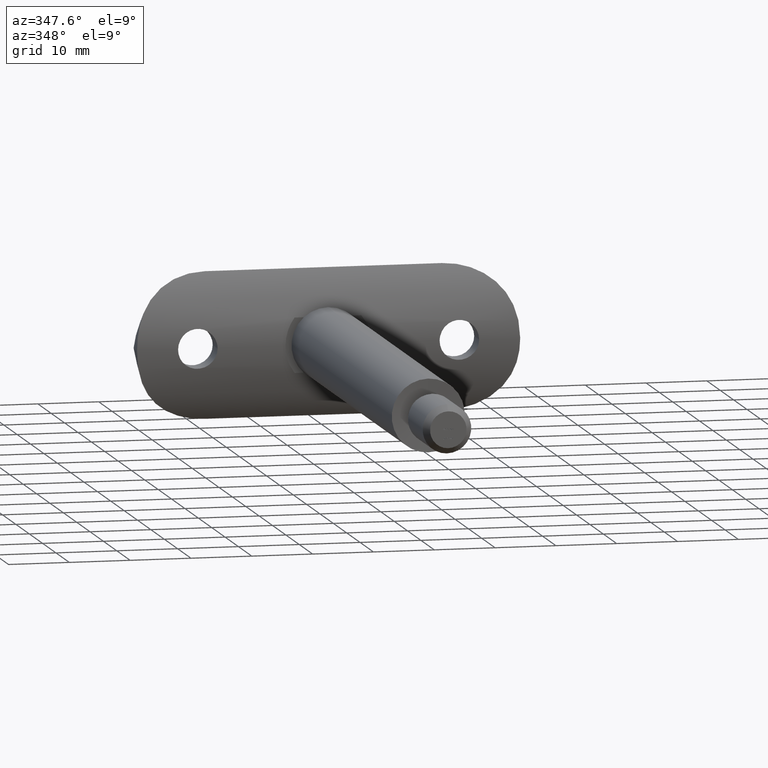
[diagram: clean part render]
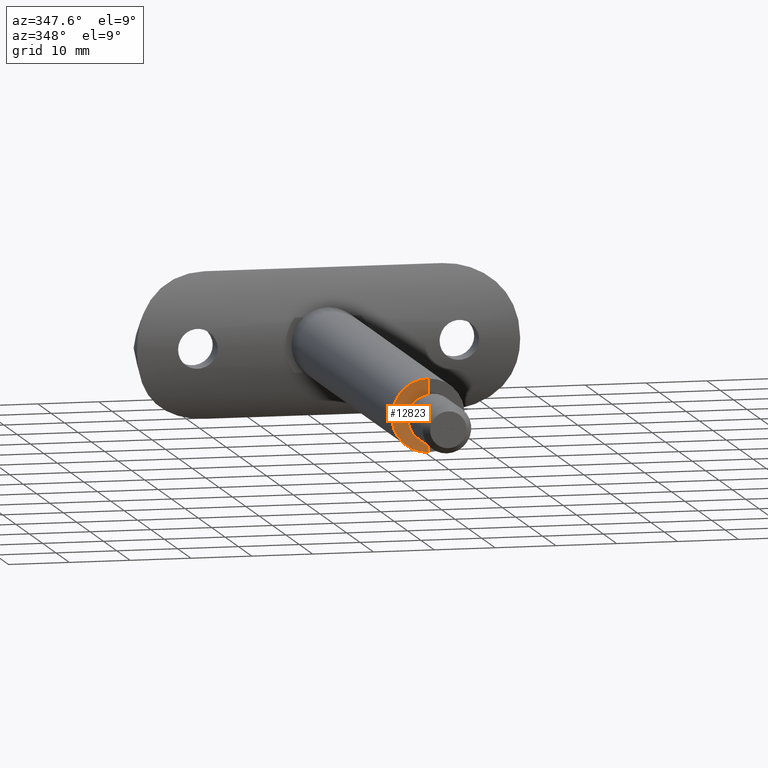
[diagram: same view with one face highlighted and labeled with its STEP entity id]
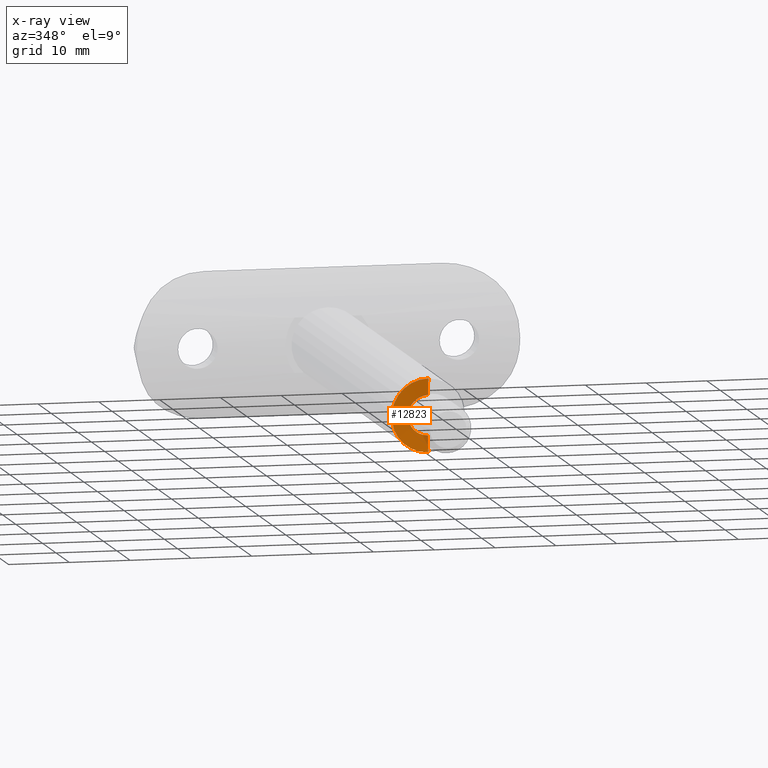
[diagram: x-ray of the same camera — body ghosted, the highlighted face saturated]
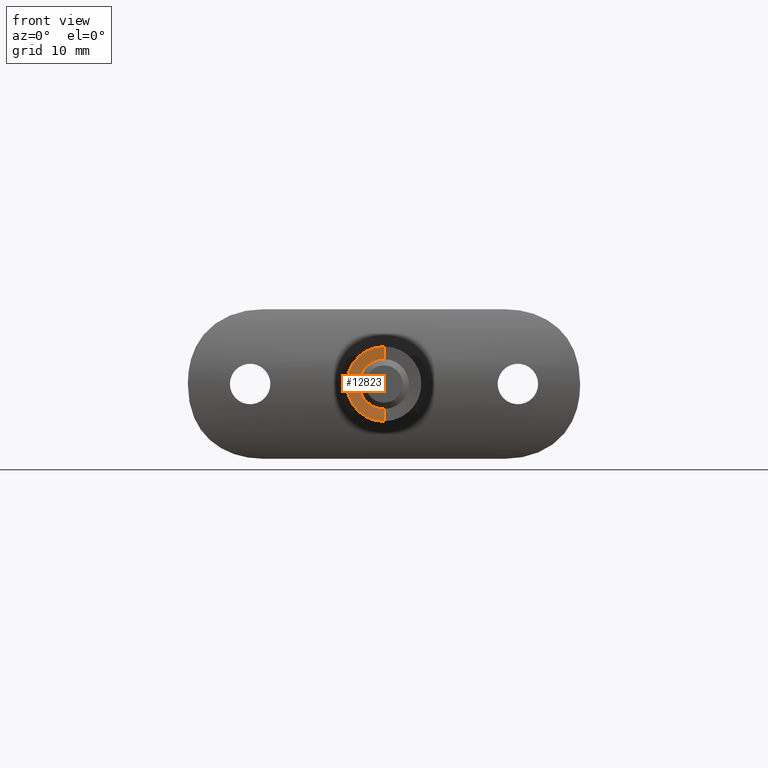
[diagram: same view with one face highlighted and labeled with its STEP entity id]
A machine part, auxiliary view. The second image highlights one B-rep face of the part: STEP entity #12823.
The next image is the same camera in x-ray: the body ghosted, the highlighted face saturated — about 2% of this face is hidden behind the body in this view.
A second angle (front view) of the same face is appended — the face is thin or edge-on in the first view.
In plain terms, the highlighted conical surface has half-angle 85 deg.
Its self-contained STEP definition (entity closure, byte-faithful):
#427 = DIRECTION ( 'NONE',  ( -0.0000000000000000000, -1.000000000000000000, -0.0000000000000000000 ) ) ;
#481 = EDGE_LOOP ( 'NONE', ( #749, #10562, #11904, #9222 ) ) ;
#495 = CIRCLE ( 'NONE', #9235, 6.000000000000000000 ) ;
#749 = ORIENTED_EDGE ( 'NONE', *, *, #12255, .F. ) ;
#893 = DIRECTION ( 'NONE',  ( 0.0000000000000000000, 0.0000000000000000000, -1.000000000000000000 ) ) ;
#1464 = EDGE_CURVE ( 'NONE', #8291, #6192, #2569, .T. ) ;
#1476 = DIRECTION ( 'NONE',  ( 0.0000000000000000000, 0.0000000000000000000, -1.000000000000000000 ) ) ;
#1478 = CARTESIAN_POINT ( 'NONE',  ( 0.0000000000000000000, 0.2386875398333737600, -3.271788935686918500 ) ) ;
#2389 = CARTESIAN_POINT ( 'NONE',  ( 4.006785847574703800E-016, 0.2386875398333737600, 3.271788935686913200 ) ) ;
#2569 = LINE ( 'NONE', #8793, #6424 ) ;
#2782 = AXIS2_PLACEMENT_3D ( 'NONE', #13544, #11207, #893 ) ;
#2891 = CARTESIAN_POINT ( 'NONE',  ( 0.0000000000000000000, 0.0000000000000000000, -6.000000000000010700 ) ) ;
#3867 = DIRECTION ( 'NONE',  ( 0.0000000000000000000, 0.0000000000000000000, -1.000000000000000000 ) ) ;
#3915 = EDGE_CURVE ( 'NONE', #6228, #6192, #495, .T. ) ;
#4145 = DIRECTION ( 'NONE',  ( 0.0000000000000000000, -0.08715574274765171300, -0.9961946980917461000 ) ) ;
#4331 = CIRCLE ( 'NONE', #2782, 3.271788935686913200 ) ;
#4960 = VECTOR ( 'NONE', #5059, 1000.000000000000000 ) ;
#5026 = DIRECTION ( 'NONE',  ( -0.0000000000000000000, -1.000000000000000000, -0.0000000000000000000 ) ) ;
#5059 = DIRECTION ( 'NONE',  ( 1.219986648345620700E-016, -0.08715574274765171300, 0.9961946980917461000 ) ) ;
#6192 = VERTEX_POINT ( 'NONE', #2891 ) ;
#6228 = VERTEX_POINT ( 'NONE', #8698 ) ;
#6251 = CARTESIAN_POINT ( 'NONE',  ( 0.0000000000000000000, 0.2386875398333737600, 0.0000000000000000000 ) ) ;
#6424 = VECTOR ( 'NONE', #4145, 1000.000000000000000 ) ;
#6588 = LINE ( 'NONE', #2389, #4960 ) ;
#6913 = CARTESIAN_POINT ( 'NONE',  ( 0.0000000000000000000, 0.0000000000000000000, 0.0000000000000000000 ) ) ;
#8291 = VERTEX_POINT ( 'NONE', #1478 ) ;
#8698 = CARTESIAN_POINT ( 'NONE',  ( 7.347880794884131600E-016, 0.0000000000000000000, 6.000000000000010700 ) ) ;
#8793 = CARTESIAN_POINT ( 'NONE',  ( 0.0000000000000000000, 0.2386875398333737600, -3.271788935686913200 ) ) ;
#9222 = ORIENTED_EDGE ( 'NONE', *, *, #1464, .F. ) ;
#9235 = AXIS2_PLACEMENT_3D ( 'NONE', #6913, #427, #3867 ) ;
#10126 = VERTEX_POINT ( 'NONE', #14935 ) ;
#10133 = CONICAL_SURFACE ( 'NONE', #10781, 3.271788935686913200, 1.483529864195186600 ) ;
#10242 = EDGE_CURVE ( 'NONE', #10126, #6228, #6588, .T. ) ;
#10562 = ORIENTED_EDGE ( 'NONE', *, *, #10242, .T. ) ;
#10781 = AXIS2_PLACEMENT_3D ( 'NONE', #6251, #5026, #1476 ) ;
#11207 = DIRECTION ( 'NONE',  ( -0.0000000000000000000, -1.000000000000000000, -0.0000000000000000000 ) ) ;
#11904 = ORIENTED_EDGE ( 'NONE', *, *, #3915, .T. ) ;
#12255 = EDGE_CURVE ( 'NONE', #10126, #8291, #4331, .T. ) ;
#12823 = ADVANCED_FACE ( 'NONE', ( #13394 ), #10133, .F. ) ;
#13394 = FACE_OUTER_BOUND ( 'NONE', #481, .T. ) ;
#13544 = CARTESIAN_POINT ( 'NONE',  ( 0.0000000000000000000, 0.2386875398333737600, 0.0000000000000000000 ) ) ;
#14935 = CARTESIAN_POINT ( 'NONE',  ( 4.006785847574710200E-016, 0.2386875398333737600, 3.271788935686918500 ) ) ;